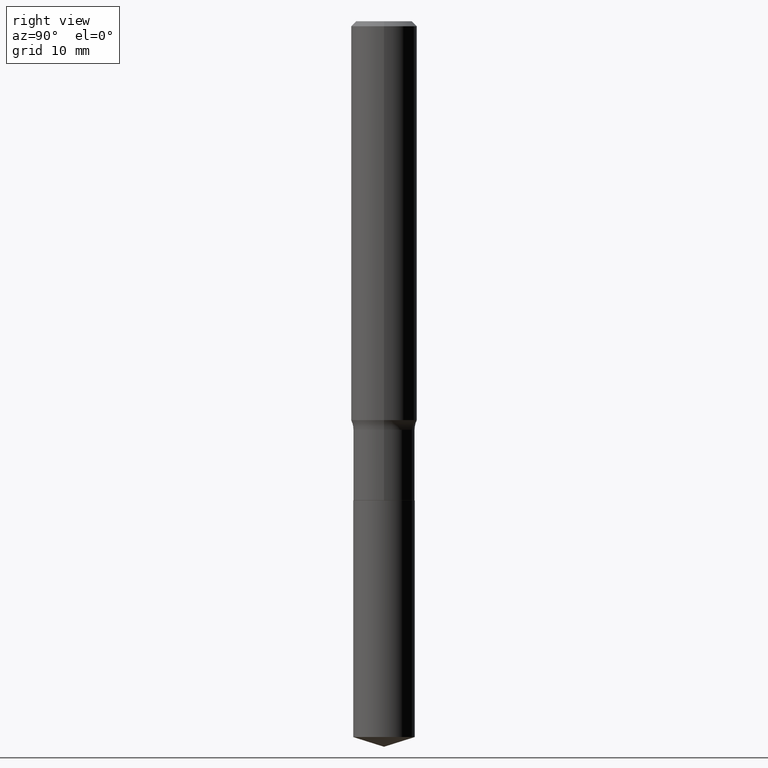
[diagram: clean part render]
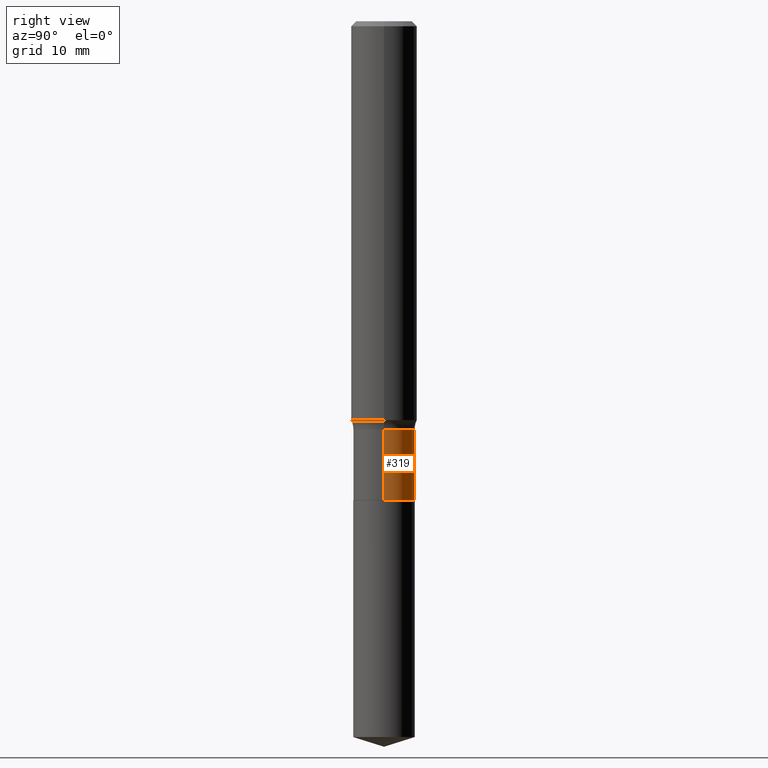
[diagram: same view with one face highlighted and labeled with its STEP entity id]
A machine part, right view. The second image highlights one B-rep face of the part: STEP entity #319.
In plain terms, the highlighted cylindrical surface (edge-blend (fillet) strip) has radius 2.8003 mm, axis along (-0, 0, 1).
Its self-contained STEP definition (entity closure, byte-faithful):
#10 = CARTESIAN_POINT ( 'NONE',  ( 4.196424471413694799E-29, -5.991381977454837695E-15, -1.715999999999999970 ) ) ;
#11 = ORIENTED_EDGE ( 'NONE', *, *, #61, .T. ) ;
#16 = CARTESIAN_POINT ( 'NONE',  ( -0.1102499999999999869, 7.833733661755103618E-16, -5.423125937006033469E-30 ) ) ;
#26 = VERTEX_POINT ( 'NONE', #350 ) ;
#36 = AXIS2_PLACEMENT_3D ( 'NONE', #450, #300, #463 ) ;
#59 = CARTESIAN_POINT ( 'NONE',  ( -0.1102499999999999730, -4.766161647848727228E-15, -1.462899999999999867 ) ) ;
#61 = EDGE_CURVE ( 'NONE', #26, #85, #162, .T. ) ;
#63 = DIRECTION ( 'NONE',  ( -2.445468806185136597E-29, 3.491481338843145583E-15, 1.000000000000000000 ) ) ;
#74 = CYLINDRICAL_SURFACE ( 'NONE', #159, 0.1102499999999999869 ) ;
#78 = FACE_OUTER_BOUND ( 'NONE', #111, .T. ) ;
#85 = VERTEX_POINT ( 'NONE', #59 ) ;
#98 = VECTOR ( 'NONE', #323, 39.37007874015748143 ) ;
#111 = EDGE_LOOP ( 'NONE', ( #488, #11, #422, #413 ) ) ;
#140 = VERTEX_POINT ( 'NONE', #436 ) ;
#159 = AXIS2_PLACEMENT_3D ( 'NONE', #354, #389, #456 ) ;
#162 = LINE ( 'NONE', #16, #298 ) ;
#164 = CARTESIAN_POINT ( 'NONE',  ( 0.1102499999999999869, -7.698716352149107826E-16, 5.375984895315018903E-30 ) ) ;
#189 = EDGE_CURVE ( 'NONE', #140, #331, #434, .T. ) ;
#229 = CARTESIAN_POINT ( 'NONE',  ( 0.1102499999999999730, -5.877559685808547774E-15, -1.462899999999999867 ) ) ;
#265 = EDGE_CURVE ( 'NONE', #140, #26, #357, .T. ) ;
#287 = DIRECTION ( 'NONE',  ( 1.000000000000000000, -6.982962677686269077E-15, 0.000000000000000000 ) ) ;
#298 = VECTOR ( 'NONE', #318, 39.37007874015748143 ) ;
#300 = DIRECTION ( 'NONE',  ( -2.445468806185136597E-29, 3.491481338843145583E-15, 1.000000000000000000 ) ) ;
#318 = DIRECTION ( 'NONE',  ( -2.445468806185136877E-29, 3.491481338843145188E-15, 1.000000000000000000 ) ) ;
#319 = ADVANCED_FACE ( 'NONE', ( #78 ), #74, .T. ) ;
#323 = DIRECTION ( 'NONE',  ( -2.445468806185136877E-29, 3.491481338843145188E-15, 1.000000000000000000 ) ) ;
#324 = AXIS2_PLACEMENT_3D ( 'NONE', #10, #63, #287 ) ;
#331 = VERTEX_POINT ( 'NONE', #229 ) ;
#350 = CARTESIAN_POINT ( 'NONE',  ( -0.1102500000000000008, -4.766161647848727228E-15, -1.715999999999999970 ) ) ;
#354 = CARTESIAN_POINT ( 'NONE',  ( 0.000000000000000000, 0.000000000000000000, 0.000000000000000000 ) ) ;
#357 = CIRCLE ( 'NONE', #324, 0.1102500000000000008 ) ;
#389 = DIRECTION ( 'NONE',  ( -2.445468806185136597E-29, 3.491481338843145583E-15, 1.000000000000000000 ) ) ;
#404 = EDGE_CURVE ( 'NONE', #331, #85, #407, .T. ) ;
#407 = CIRCLE ( 'NONE', #36, 0.1102499999999999730 ) ;
#413 = ORIENTED_EDGE ( 'NONE', *, *, #189, .F. ) ;
#422 = ORIENTED_EDGE ( 'NONE', *, *, #404, .F. ) ;
#434 = LINE ( 'NONE', #164, #98 ) ;
#436 = CARTESIAN_POINT ( 'NONE',  ( 0.1102500000000000008, -6.761253612669749168E-15, -1.715999999999999970 ) ) ;
#450 = CARTESIAN_POINT ( 'NONE',  ( 3.577476316568235617E-29, -5.107688050593637090E-15, -1.462899999999999867 ) ) ;
#456 = DIRECTION ( 'NONE',  ( 1.000000000000000000, -6.982962677686266711E-15, 4.876176775795936353E-29 ) ) ;
#463 = DIRECTION ( 'NONE',  ( 1.000000000000000000, -6.982962677686261977E-15, 0.000000000000000000 ) ) ;
#488 = ORIENTED_EDGE ( 'NONE', *, *, #265, .T. ) ;